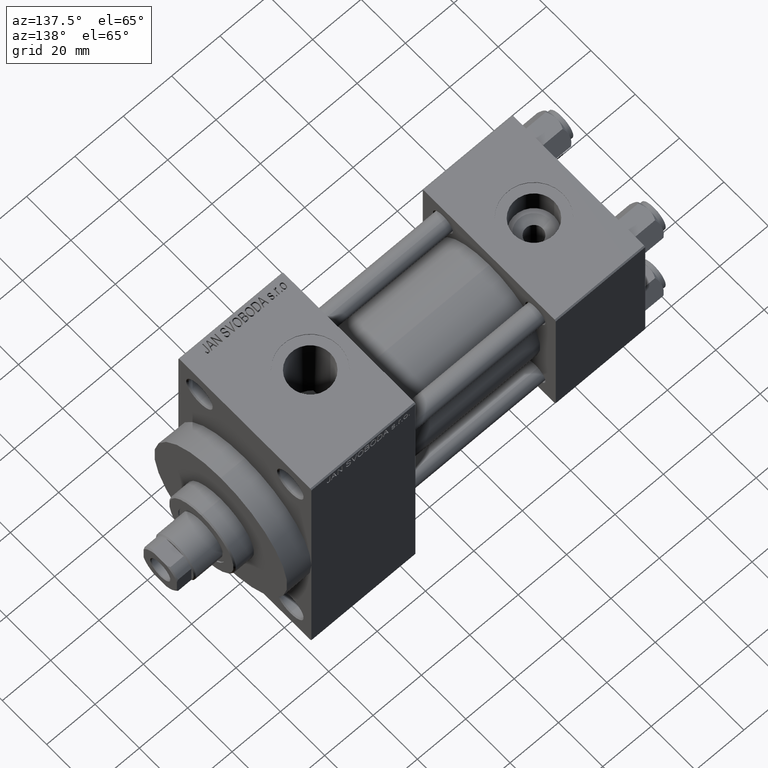
[diagram: clean part render]
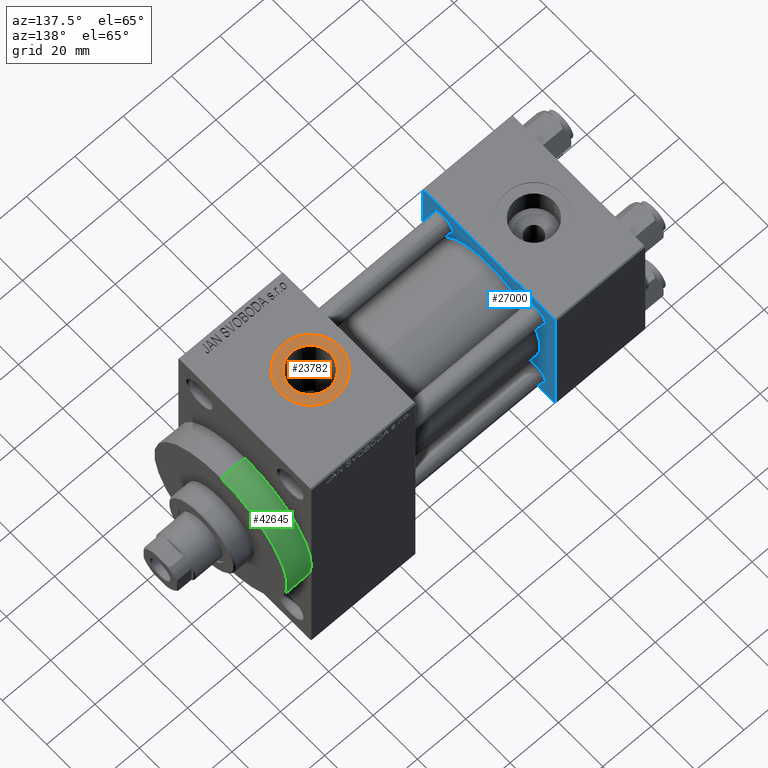
[diagram: same view with three faces highlighted in distinct colors, each labeled with its STEP entity id]
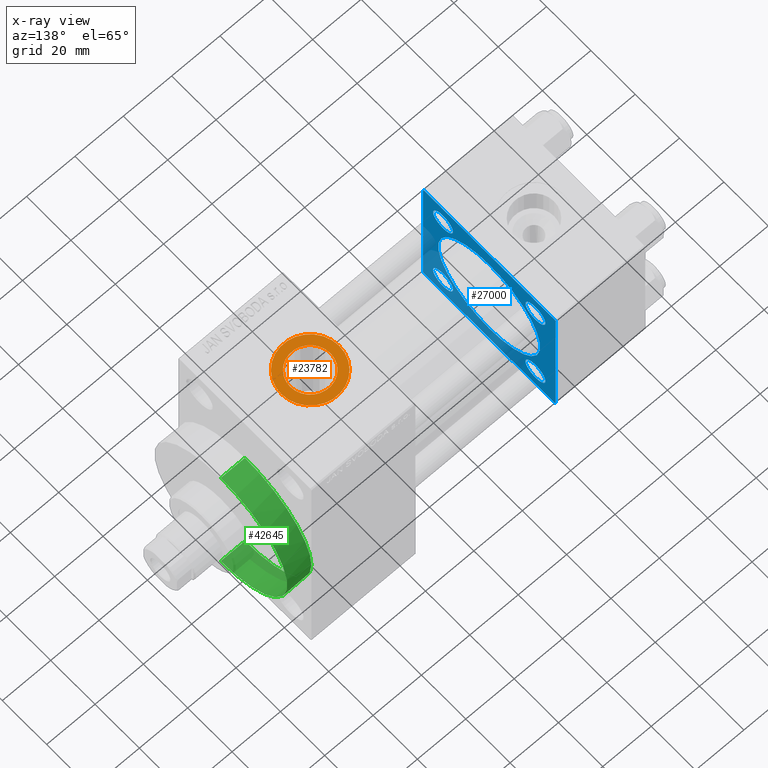
[diagram: x-ray of the same camera — body ghosted, the three highlighted faces saturated]
A machine part, auxiliary view with three faces highlighted in distinct colors.
The next image is the same camera in x-ray (body ghosted, the three faces saturated) — at least one of them is partly hidden behind the body in this view.
Their STEP definitions:

[orange] entity #23782 — the highlighted planar face has unit normal (0, 0, 1).
#280 = VERTEX_POINT ( 'NONE', #43083 ) ;
#3388 = CIRCLE ( 'NONE', #28540, 8.330000000000003624 ) ;
#4473 = PLANE ( 'NONE',  #13547 ) ;
#5805 = AXIS2_PLACEMENT_3D ( 'NONE', #40651, #6958, #43984 ) ;
#6668 = EDGE_CURVE ( 'NONE', #15767, #280, #32725, .T. ) ;
#6922 = DIRECTION ( 'NONE',  ( -0.000000000000000000, -0.000000000000000000, -1.000000000000000000 ) ) ;
#6958 = DIRECTION ( 'NONE',  ( -0.000000000000000000, -0.000000000000000000, -1.000000000000000000 ) ) ;
#7369 = DIRECTION ( 'NONE',  ( 0.000000000000000000, 0.000000000000000000, 1.000000000000000000 ) ) ;
#7382 = CARTESIAN_POINT ( 'NONE',  ( 111.0000000000000000, 6.302828629382399373E-15, 54.29999999999999716 ) ) ;
#10007 = CIRCLE ( 'NONE', #33650, 11.99999999999999645 ) ;
#10721 = ORIENTED_EDGE ( 'NONE', *, *, #43108, .T. ) ;
#10802 = ORIENTED_EDGE ( 'NONE', *, *, #6668, .T. ) ;
#11418 = DIRECTION ( 'NONE',  ( 1.000000000000000000, 0.000000000000000000, 0.000000000000000000 ) ) ;
#12669 = EDGE_LOOP ( 'NONE', ( #33732, #10802 ) ) ;
#13547 = AXIS2_PLACEMENT_3D ( 'NONE', #22616, #19514, #15474 ) ;
#13561 = VERTEX_POINT ( 'NONE', #37859 ) ;
#14585 = CARTESIAN_POINT ( 'NONE',  ( 99.00000000000000000, 7.772404788359221939E-15, 54.29999999999999716 ) ) ;
#15474 = DIRECTION ( 'NONE',  ( 1.000000000000000000, 0.000000000000000000, -0.000000000000000000 ) ) ;
#15767 = VERTEX_POINT ( 'NONE', #14585 ) ;
#15939 = FACE_BOUND ( 'NONE', #18379, .T. ) ;
#16300 = VERTEX_POINT ( 'NONE', #18986 ) ;
#18379 = EDGE_LOOP ( 'NONE', ( #10721, #30315 ) ) ;
#18986 = CARTESIAN_POINT ( 'NONE',  ( 119.3300000000000125, 7.322959413072145713E-15, 54.29999999999999716 ) ) ;
#19514 = DIRECTION ( 'NONE',  ( 0.000000000000000000, 0.000000000000000000, 1.000000000000000000 ) ) ;
#22422 = DIRECTION ( 'NONE',  ( 1.000000000000000000, 0.000000000000000000, 0.000000000000000000 ) ) ;
#22616 = CARTESIAN_POINT ( 'NONE',  ( 111.0000000000000000, 6.302828629382399373E-15, 54.29999999999999716 ) ) ;
#23782 = ADVANCED_FACE ( 'NONE', ( #15939, #37435 ), #4473, .T. ) ;
#28540 = AXIS2_PLACEMENT_3D ( 'NONE', #46356, #6922, #39190 ) ;
#30315 = ORIENTED_EDGE ( 'NONE', *, *, #46671, .T. ) ;
#31522 = EDGE_CURVE ( 'NONE', #280, #15767, #10007, .T. ) ;
#32698 = CARTESIAN_POINT ( 'NONE',  ( 111.0000000000000000, 6.302828629382399373E-15, 54.29999999999999716 ) ) ;
#32725 = CIRCLE ( 'NONE', #45714, 11.99999999999999645 ) ;
#33178 = DIRECTION ( 'NONE',  ( 0.000000000000000000, 0.000000000000000000, 1.000000000000000000 ) ) ;
#33650 = AXIS2_PLACEMENT_3D ( 'NONE', #32698, #7369, #11418 ) ;
#33732 = ORIENTED_EDGE ( 'NONE', *, *, #31522, .T. ) ;
#35570 = CIRCLE ( 'NONE', #5805, 8.330000000000003624 ) ;
#37435 = FACE_OUTER_BOUND ( 'NONE', #12669, .T. ) ;
#37859 = CARTESIAN_POINT ( 'NONE',  ( 102.6700000000000017, 6.302828629382400162E-15, 54.29999999999999716 ) ) ;
#39190 = DIRECTION ( 'NONE',  ( 1.000000000000000000, 0.000000000000000000, 0.000000000000000000 ) ) ;
#40651 = CARTESIAN_POINT ( 'NONE',  ( 111.0000000000000000, 6.302828629382400162E-15, 54.29999999999999716 ) ) ;
#43083 = CARTESIAN_POINT ( 'NONE',  ( 123.0000000000000000, 6.302828629382399373E-15, 54.29999999999999716 ) ) ;
#43108 = EDGE_CURVE ( 'NONE', #13561, #16300, #3388, .T. ) ;
#43984 = DIRECTION ( 'NONE',  ( 1.000000000000000000, 0.000000000000000000, 0.000000000000000000 ) ) ;
#45714 = AXIS2_PLACEMENT_3D ( 'NONE', #7382, #33178, #22422 ) ;
#46356 = CARTESIAN_POINT ( 'NONE',  ( 111.0000000000000000, 6.302828629382400162E-15, 54.29999999999999716 ) ) ;
#46671 = EDGE_CURVE ( 'NONE', #16300, #13561, #35570, .T. ) ;

[blue] entity #27000 — the highlighted planar face has unit normal (-1, 0, 0).
#322 = FACE_BOUND ( 'NONE', #7581, .T. ) ;
#462 = CARTESIAN_POINT ( 'NONE',  ( 37.00000000000000000, 29.99999999999999289, -30.00000000000000000 ) ) ;
#1276 = CARTESIAN_POINT ( 'NONE',  ( 37.00000000000000000, 29.49999999999997868, -30.00000000000000000 ) ) ;
#1509 = ORIENTED_EDGE ( 'NONE', *, *, #27133, .T. ) ;
#1863 = VERTEX_POINT ( 'NONE', #1276 ) ;
#2144 = DIRECTION ( 'NONE',  ( 0.000000000000000000, 0.000000000000000000, 1.000000000000000000 ) ) ;
#2237 = AXIS2_PLACEMENT_3D ( 'NONE', #11277, #36851, #39729 ) ;
#2449 = DIRECTION ( 'NONE',  ( -1.000000000000000000, 0.000000000000000000, -0.000000000000000000 ) ) ;
#2495 = EDGE_CURVE ( 'NONE', #1863, #44735, #18601, .T. ) ;
#3089 = AXIS2_PLACEMENT_3D ( 'NONE', #26754, #30820, #26991 ) ;
#3912 = CARTESIAN_POINT ( 'NONE',  ( 37.00000000000000000, 20.84999999999999787, 25.34999999999997655 ) ) ;
#4150 = EDGE_LOOP ( 'NONE', ( #7573, #26813 ) ) ;
#4767 = VECTOR ( 'NONE', #19657, 1000.000000000000114 ) ;
#4871 = ORIENTED_EDGE ( 'NONE', *, *, #9723, .T. ) ;
#5250 = AXIS2_PLACEMENT_3D ( 'NONE', #34289, #23074, #23531 ) ;
#5316 = EDGE_CURVE ( 'NONE', #14530, #36665, #35202, .T. ) ;
#5451 = AXIS2_PLACEMENT_3D ( 'NONE', #38989, #2449, #31352 ) ;
#5544 = DIRECTION ( 'NONE',  ( 0.000000000000000000, 0.000000000000000000, 1.000000000000000000 ) ) ;
#6476 = DIRECTION ( 'NONE',  ( -1.000000000000000000, 0.000000000000000000, -0.000000000000000000 ) ) ;
#6529 = CARTESIAN_POINT ( 'NONE',  ( 37.00000000000000000, 29.49999999999999289, 30.00000000000000000 ) ) ;
#6569 = EDGE_LOOP ( 'NONE', ( #18341, #9292 ) ) ;
#7053 = CARTESIAN_POINT ( 'NONE',  ( 37.00000000000000000, -30.00000000000000000, 29.99999999999999289 ) ) ;
#7521 = LINE ( 'NONE', #7053, #35707 ) ;
#7573 = ORIENTED_EDGE ( 'NONE', *, *, #45480, .T. ) ;
#7581 = EDGE_LOOP ( 'NONE', ( #36944, #38212 ) ) ;
#8081 = ORIENTED_EDGE ( 'NONE', *, *, #38204, .T. ) ;
#8140 = CARTESIAN_POINT ( 'NONE',  ( 37.00000000000000000, 20.84999999999999787, -25.34999999999997655 ) ) ;
#8207 = CARTESIAN_POINT ( 'NONE',  ( 37.00000000000000000, -29.50000000000001066, -30.00000000000000711 ) ) ;
#8476 = CARTESIAN_POINT ( 'NONE',  ( 37.00000000000000000, -29.50000000000000000, -30.00000000000000711 ) ) ;
#8569 = DIRECTION ( 'NONE',  ( 1.000000000000000000, -0.000000000000000000, 0.000000000000000000 ) ) ;
#9292 = ORIENTED_EDGE ( 'NONE', *, *, #11931, .T. ) ;
#9521 = CARTESIAN_POINT ( 'NONE',  ( 37.00000000000000000, 20.84999999999999787, -16.35000000000002274 ) ) ;
#9723 = EDGE_CURVE ( 'NONE', #35424, #47207, #23677, .T. ) ;
#9734 = CARTESIAN_POINT ( 'NONE',  ( 37.00000000000000000, -30.00000000000000000, 29.49999999999999289 ) ) ;
#9835 = AXIS2_PLACEMENT_3D ( 'NONE', #31804, #6476, #5544 ) ;
#10071 = LINE ( 'NONE', #43047, #19205 ) ;
#10229 = ORIENTED_EDGE ( 'NONE', *, *, #16850, .T. ) ;
#10530 = DIRECTION ( 'NONE',  ( -0.000000000000000000, -0.7071067811865474617, -0.7071067811865474617 ) ) ;
#11036 = CARTESIAN_POINT ( 'NONE',  ( 37.00000000000000000, -20.84999999999999076, 20.85000000000000497 ) ) ;
#11162 = VERTEX_POINT ( 'NONE', #18538 ) ;
#11277 = CARTESIAN_POINT ( 'NONE',  ( 37.00000000000000000, 0.000000000000000000, 0.000000000000000000 ) ) ;
#11434 = CARTESIAN_POINT ( 'NONE',  ( 37.00000000000000000, 20.84999999999999787, -20.85000000000000142 ) ) ;
#11516 = FACE_BOUND ( 'NONE', #4150, .T. ) ;
#11931 = EDGE_CURVE ( 'NONE', #44120, #45441, #38890, .T. ) ;
#11974 = DIRECTION ( 'NONE',  ( -1.000000000000000000, 0.000000000000000000, -0.000000000000000000 ) ) ;
#12677 = DIRECTION ( 'NONE',  ( 0.000000000000000000, 0.000000000000000000, 1.000000000000000000 ) ) ;
#13368 = AXIS2_PLACEMENT_3D ( 'NONE', #41347, #23180, #2144 ) ;
#14394 = FACE_BOUND ( 'NONE', #44146, .T. ) ;
#14530 = VERTEX_POINT ( 'NONE', #30677 ) ;
#14760 = EDGE_CURVE ( 'NONE', #18127, #21632, #27550, .T. ) ;
#14876 = PLANE ( 'NONE',  #2237 ) ;
#14895 = LINE ( 'NONE', #40940, #33282 ) ;
#14905 = ORIENTED_EDGE ( 'NONE', *, *, #2495, .F. ) ;
#15013 = LINE ( 'NONE', #44160, #38904 ) ;
#15535 = VERTEX_POINT ( 'NONE', #39485 ) ;
#16006 = AXIS2_PLACEMENT_3D ( 'NONE', #34581, #8569, #23354 ) ;
#16850 = EDGE_CURVE ( 'NONE', #15535, #19140, #10071, .T. ) ;
#18127 = VERTEX_POINT ( 'NONE', #38699 ) ;
#18185 = EDGE_CURVE ( 'NONE', #1863, #22318, #36283, .T. ) ;
#18262 = DIRECTION ( 'NONE',  ( 0.000000000000000000, 0.000000000000000000, -1.000000000000000000 ) ) ;
#18341 = ORIENTED_EDGE ( 'NONE', *, *, #28635, .T. ) ;
#18538 = CARTESIAN_POINT ( 'NONE',  ( 37.00000000000000000, -20.84999999999999076, -16.35000000000002629 ) ) ;
#18601 = LINE ( 'NONE', #462, #34126 ) ;
#18711 = LINE ( 'NONE', #8207, #4767 ) ;
#18969 = VECTOR ( 'NONE', #21559, 1000.000000000000114 ) ;
#19140 = VERTEX_POINT ( 'NONE', #9734 ) ;
#19205 = VECTOR ( 'NONE', #10530, 1000.000000000000114 ) ;
#19307 = DIRECTION ( 'NONE',  ( 0.000000000000000000, -1.000000000000000000, -1.156482317317871725E-16 ) ) ;
#19657 = DIRECTION ( 'NONE',  ( 0.000000000000000000, 0.7071067811865474617, -0.7071067811865474617 ) ) ;
#19942 = CARTESIAN_POINT ( 'NONE',  ( 37.00000000000000000, 20.84999999999999787, 16.35000000000002274 ) ) ;
#20469 = EDGE_CURVE ( 'NONE', #36665, #15535, #15013, .T. ) ;
#20558 = EDGE_CURVE ( 'NONE', #24448, #37509, #36579, .T. ) ;
#21344 = CIRCLE ( 'NONE', #29752, 4.499999999999976019 ) ;
#21528 = VERTEX_POINT ( 'NONE', #32295 ) ;
#21559 = DIRECTION ( 'NONE',  ( 0.000000000000000000, -0.7071067811865474617, 0.7071067811865474617 ) ) ;
#21632 = VERTEX_POINT ( 'NONE', #37994 ) ;
#21893 = EDGE_CURVE ( 'NONE', #37509, #24448, #33368, .T. ) ;
#21942 = DIRECTION ( 'NONE',  ( -0.000000000000000000, 0.7071067811865574537, 0.7071067811865376918 ) ) ;
#22318 = VERTEX_POINT ( 'NONE', #30663 ) ;
#22670 = VERTEX_POINT ( 'NONE', #43187 ) ;
#23074 = DIRECTION ( 'NONE',  ( 1.000000000000000000, -0.000000000000000000, 0.000000000000000000 ) ) ;
#23093 = ORIENTED_EDGE ( 'NONE', *, *, #18185, .T. ) ;
#23180 = DIRECTION ( 'NONE',  ( -1.000000000000000000, 0.000000000000000000, -0.000000000000000000 ) ) ;
#23354 = DIRECTION ( 'NONE',  ( 0.000000000000000000, 0.000000000000000000, 1.000000000000000000 ) ) ;
#23531 = DIRECTION ( 'NONE',  ( 0.000000000000000000, 0.000000000000000000, 1.000000000000000000 ) ) ;
#23677 = CIRCLE ( 'NONE', #3089, 4.499999999999976019 ) ;
#24062 = EDGE_CURVE ( 'NONE', #19140, #22670, #7521, .T. ) ;
#24448 = VERTEX_POINT ( 'NONE', #47135 ) ;
#24850 = DIRECTION ( 'NONE',  ( -1.000000000000000000, 0.000000000000000000, -0.000000000000000000 ) ) ;
#24955 = ORIENTED_EDGE ( 'NONE', *, *, #21893, .F. ) ;
#25064 = CARTESIAN_POINT ( 'NONE',  ( 37.00000000000000000, 29.99999999999999289, -29.50000000000000000 ) ) ;
#25330 = DIRECTION ( 'NONE',  ( 0.000000000000000000, 0.000000000000000000, 1.000000000000000000 ) ) ;
#25858 = FACE_BOUND ( 'NONE', #6569, .T. ) ;
#25881 = DIRECTION ( 'NONE',  ( 0.000000000000000000, 0.000000000000000000, -1.000000000000000000 ) ) ;
#26044 = CIRCLE ( 'NONE', #5451, 4.499999999999976019 ) ;
#26654 = CIRCLE ( 'NONE', #9835, 4.499999999999976019 ) ;
#26754 = CARTESIAN_POINT ( 'NONE',  ( 37.00000000000000000, 20.84999999999999787, 20.85000000000000142 ) ) ;
#26813 = ORIENTED_EDGE ( 'NONE', *, *, #43019, .T. ) ;
#26886 = VECTOR ( 'NONE', #21942, 999.9999999999998863 ) ;
#26960 = DIRECTION ( 'NONE',  ( -1.000000000000000000, 0.000000000000000000, -0.000000000000000000 ) ) ;
#26991 = DIRECTION ( 'NONE',  ( 0.000000000000000000, 0.000000000000000000, 1.000000000000000000 ) ) ;
#27000 = ADVANCED_FACE ( 'NONE', ( #11516, #25858, #322, #14394, #39488, #44019 ), #14876, .F. ) ;
#27133 = EDGE_CURVE ( 'NONE', #47207, #35424, #26654, .T. ) ;
#27242 = DIRECTION ( 'NONE',  ( -1.000000000000000000, 0.000000000000000000, -0.000000000000000000 ) ) ;
#27550 = CIRCLE ( 'NONE', #35164, 4.499999999999976019 ) ;
#27858 = CIRCLE ( 'NONE', #13368, 4.499999999999976019 ) ;
#28535 = ORIENTED_EDGE ( 'NONE', *, *, #24062, .T. ) ;
#28635 = EDGE_CURVE ( 'NONE', #45441, #44120, #21344, .T. ) ;
#29752 = AXIS2_PLACEMENT_3D ( 'NONE', #11434, #26960, #33415 ) ;
#29803 = EDGE_LOOP ( 'NONE', ( #24955, #43197 ) ) ;
#30663 = CARTESIAN_POINT ( 'NONE',  ( 37.00000000000000000, 29.99999999999999289, -29.50000000000000000 ) ) ;
#30677 = CARTESIAN_POINT ( 'NONE',  ( 37.00000000000000000, 29.99999999999999289, 29.50000000000000000 ) ) ;
#30820 = DIRECTION ( 'NONE',  ( -1.000000000000000000, 0.000000000000000000, -0.000000000000000000 ) ) ;
#31055 = CARTESIAN_POINT ( 'NONE',  ( 37.00000000000000000, 29.49999999999999289, 30.00000000000000000 ) ) ;
#31342 = ORIENTED_EDGE ( 'NONE', *, *, #47168, .F. ) ;
#31352 = DIRECTION ( 'NONE',  ( 0.000000000000000000, 0.000000000000000000, 1.000000000000000000 ) ) ;
#31804 = CARTESIAN_POINT ( 'NONE',  ( 37.00000000000000000, 20.84999999999999787, 20.85000000000000142 ) ) ;
#32295 = CARTESIAN_POINT ( 'NONE',  ( 37.00000000000000000, -20.84999999999999076, -25.34999999999998010 ) ) ;
#32460 = EDGE_CURVE ( 'NONE', #21632, #18127, #26044, .T. ) ;
#33169 = DIRECTION ( 'NONE',  ( 0.000000000000000000, -1.000000000000000000, -1.156482317317871725E-16 ) ) ;
#33282 = VECTOR ( 'NONE', #25881, 1000.000000000000000 ) ;
#33368 = CIRCLE ( 'NONE', #5250, 23.00000000000000000 ) ;
#33415 = DIRECTION ( 'NONE',  ( 0.000000000000000000, 0.000000000000000000, 1.000000000000000000 ) ) ;
#34126 = VECTOR ( 'NONE', #19307, 1000.000000000000000 ) ;
#34289 = CARTESIAN_POINT ( 'NONE',  ( 37.00000000000000000, -2.602085213965210642E-15, 0.000000000000000000 ) ) ;
#34581 = CARTESIAN_POINT ( 'NONE',  ( 37.00000000000000000, -2.602085213965210642E-15, 0.000000000000000000 ) ) ;
#35164 = AXIS2_PLACEMENT_3D ( 'NONE', #11036, #11974, #40673 ) ;
#35202 = LINE ( 'NONE', #6529, #18969 ) ;
#35424 = VERTEX_POINT ( 'NONE', #19942 ) ;
#35595 = CARTESIAN_POINT ( 'NONE',  ( 37.00000000000000000, 20.84999999999999787, -20.85000000000000142 ) ) ;
#35707 = VECTOR ( 'NONE', #18262, 1000.000000000000000 ) ;
#36283 = LINE ( 'NONE', #25064, #26886 ) ;
#36579 = CIRCLE ( 'NONE', #16006, 23.00000000000000000 ) ;
#36665 = VERTEX_POINT ( 'NONE', #31055 ) ;
#36704 = AXIS2_PLACEMENT_3D ( 'NONE', #35595, #24850, #25330 ) ;
#36851 = DIRECTION ( 'NONE',  ( -1.000000000000000000, 0.000000000000000000, -0.000000000000000000 ) ) ;
#36944 = ORIENTED_EDGE ( 'NONE', *, *, #14760, .T. ) ;
#37509 = VERTEX_POINT ( 'NONE', #44925 ) ;
#37994 = CARTESIAN_POINT ( 'NONE',  ( 37.00000000000000000, -20.84999999999999076, 25.34999999999998010 ) ) ;
#38204 = EDGE_CURVE ( 'NONE', #22670, #44735, #18711, .T. ) ;
#38212 = ORIENTED_EDGE ( 'NONE', *, *, #32460, .T. ) ;
#38360 = ORIENTED_EDGE ( 'NONE', *, *, #20469, .T. ) ;
#38699 = CARTESIAN_POINT ( 'NONE',  ( 37.00000000000000000, -20.84999999999999076, 16.35000000000002629 ) ) ;
#38890 = CIRCLE ( 'NONE', #36704, 4.499999999999976019 ) ;
#38904 = VECTOR ( 'NONE', #33169, 1000.000000000000000 ) ;
#38989 = CARTESIAN_POINT ( 'NONE',  ( 37.00000000000000000, -20.84999999999999076, 20.85000000000000497 ) ) ;
#39485 = CARTESIAN_POINT ( 'NONE',  ( 37.00000000000000000, -29.49999999999998579, 29.99999999999999289 ) ) ;
#39488 = FACE_BOUND ( 'NONE', #29803, .T. ) ;
#39729 = DIRECTION ( 'NONE',  ( -0.000000000000000000, 0.000000000000000000, 1.000000000000000000 ) ) ;
#40673 = DIRECTION ( 'NONE',  ( 0.000000000000000000, 0.000000000000000000, 1.000000000000000000 ) ) ;
#40776 = AXIS2_PLACEMENT_3D ( 'NONE', #42305, #27242, #12677 ) ;
#40940 = CARTESIAN_POINT ( 'NONE',  ( 37.00000000000000000, 29.99999999999999289, 30.00000000000000000 ) ) ;
#41347 = CARTESIAN_POINT ( 'NONE',  ( 37.00000000000000000, -20.84999999999999076, -20.85000000000000497 ) ) ;
#42305 = CARTESIAN_POINT ( 'NONE',  ( 37.00000000000000000, -20.84999999999999076, -20.85000000000000497 ) ) ;
#42982 = EDGE_LOOP ( 'NONE', ( #14905, #23093, #31342, #43411, #38360, #10229, #28535, #8081 ) ) ;
#43019 = EDGE_CURVE ( 'NONE', #11162, #21528, #44587, .T. ) ;
#43047 = CARTESIAN_POINT ( 'NONE',  ( 37.00000000000000000, -30.00000000000000000, 29.49999999999999289 ) ) ;
#43187 = CARTESIAN_POINT ( 'NONE',  ( 37.00000000000000000, -30.00000000000000000, -29.50000000000001776 ) ) ;
#43197 = ORIENTED_EDGE ( 'NONE', *, *, #20558, .F. ) ;
#43411 = ORIENTED_EDGE ( 'NONE', *, *, #5316, .T. ) ;
#44019 = FACE_OUTER_BOUND ( 'NONE', #42982, .T. ) ;
#44120 = VERTEX_POINT ( 'NONE', #9521 ) ;
#44146 = EDGE_LOOP ( 'NONE', ( #4871, #1509 ) ) ;
#44160 = CARTESIAN_POINT ( 'NONE',  ( 37.00000000000000000, 29.99999999999999289, 30.00000000000000000 ) ) ;
#44587 = CIRCLE ( 'NONE', #40776, 4.499999999999976019 ) ;
#44735 = VERTEX_POINT ( 'NONE', #8476 ) ;
#44925 = CARTESIAN_POINT ( 'NONE',  ( 37.00000000000000000, -2.602085213965210642E-15, 23.00000000000000000 ) ) ;
#45441 = VERTEX_POINT ( 'NONE', #8140 ) ;
#45480 = EDGE_CURVE ( 'NONE', #21528, #11162, #27858, .T. ) ;
#47135 = CARTESIAN_POINT ( 'NONE',  ( 37.00000000000000000, 2.146024240737012665E-16, -23.00000000000000000 ) ) ;
#47168 = EDGE_CURVE ( 'NONE', #14530, #22318, #14895, .T. ) ;
#47207 = VERTEX_POINT ( 'NONE', #3912 ) ;

[green] entity #42645 — the highlighted cylindrical surface (partial cylindrical patch) has radius 30 mm, axis along (-1, -0, -0).
#1093 = ORIENTED_EDGE ( 'NONE', *, *, #31402, .T. ) ;
#1295 = DIRECTION ( 'NONE',  ( -1.000000000000000000, -0.000000000000000000, -0.000000000000000000 ) ) ;
#3470 = ORIENTED_EDGE ( 'NONE', *, *, #18588, .F. ) ;
#5410 = AXIS2_PLACEMENT_3D ( 'NONE', #8196, #22515, #15119 ) ;
#6764 = AXIS2_PLACEMENT_3D ( 'NONE', #27664, #24558, #17158 ) ;
#7456 = VERTEX_POINT ( 'NONE', #45355 ) ;
#7486 = AXIS2_PLACEMENT_3D ( 'NONE', #13190, #10075, #27753 ) ;
#8196 = CARTESIAN_POINT ( 'NONE',  ( 138.0000000000000000, 0.000000000000000000, 0.000000000000000000 ) ) ;
#10075 = DIRECTION ( 'NONE',  ( 1.000000000000000000, 0.000000000000000000, 0.000000000000000000 ) ) ;
#10241 = AXIS2_PLACEMENT_3D ( 'NONE', #29706, #1295, #33529 ) ;
#12794 = EDGE_LOOP ( 'NONE', ( #21244, #31914, #42676, #1093, #3470 ) ) ;
#13190 = CARTESIAN_POINT ( 'NONE',  ( 138.0000000000000000, 0.000000000000000000, 0.000000000000000000 ) ) ;
#15119 = DIRECTION ( 'NONE',  ( 0.000000000000000000, 0.000000000000000000, -1.000000000000000000 ) ) ;
#15629 = CYLINDRICAL_SURFACE ( 'NONE', #10241, 30.00000000000000000 ) ;
#16675 = CIRCLE ( 'NONE', #7486, 30.00000000000000000 ) ;
#17158 = DIRECTION ( 'NONE',  ( 0.000000000000000000, 0.000000000000000000, -1.000000000000000000 ) ) ;
#18491 = VECTOR ( 'NONE', #43651, 1000.000000000000000 ) ;
#18588 = EDGE_CURVE ( 'NONE', #7456, #24252, #44110, .T. ) ;
#19434 = FACE_OUTER_BOUND ( 'NONE', #12794, .T. ) ;
#19567 = CARTESIAN_POINT ( 'NONE',  ( 148.0000000000000284, 3.673940397442059178E-15, -30.00000000000000000 ) ) ;
#21244 = ORIENTED_EDGE ( 'NONE', *, *, #25438, .F. ) ;
#21316 = EDGE_CURVE ( 'NONE', #34666, #33904, #16675, .T. ) ;
#22515 = DIRECTION ( 'NONE',  ( 1.000000000000000000, 0.000000000000000000, 0.000000000000000000 ) ) ;
#22726 = VECTOR ( 'NONE', #38195, 1000.000000000000000 ) ;
#23442 = EDGE_CURVE ( 'NONE', #35008, #34666, #41324, .T. ) ;
#24252 = VERTEX_POINT ( 'NONE', #24444 ) ;
#24444 = CARTESIAN_POINT ( 'NONE',  ( 138.0000000000000000, 0.000000000000000000, 30.00000000000000000 ) ) ;
#24558 = DIRECTION ( 'NONE',  ( 1.000000000000000000, 0.000000000000000000, 0.000000000000000000 ) ) ;
#25438 = EDGE_CURVE ( 'NONE', #35008, #7456, #46434, .T. ) ;
#27446 = CARTESIAN_POINT ( 'NONE',  ( 138.0000000000000000, 30.00000000000000000, 0.000000000000000000 ) ) ;
#27528 = CIRCLE ( 'NONE', #5410, 30.00000000000000000 ) ;
#27664 = CARTESIAN_POINT ( 'NONE',  ( 148.0000000000000284, 0.000000000000000000, 0.000000000000000000 ) ) ;
#27753 = DIRECTION ( 'NONE',  ( 0.000000000000000000, 0.000000000000000000, -1.000000000000000000 ) ) ;
#29706 = CARTESIAN_POINT ( 'NONE',  ( 148.0000000000000284, 0.000000000000000000, 0.000000000000000000 ) ) ;
#31402 = EDGE_CURVE ( 'NONE', #33904, #24252, #27528, .T. ) ;
#31914 = ORIENTED_EDGE ( 'NONE', *, *, #23442, .T. ) ;
#33529 = DIRECTION ( 'NONE',  ( 0.000000000000000000, 0.000000000000000000, 1.000000000000000000 ) ) ;
#33828 = CARTESIAN_POINT ( 'NONE',  ( 148.0000000000000284, 0.000000000000000000, 30.00000000000000000 ) ) ;
#33904 = VERTEX_POINT ( 'NONE', #27446 ) ;
#34666 = VERTEX_POINT ( 'NONE', #45866 ) ;
#35008 = VERTEX_POINT ( 'NONE', #37932 ) ;
#37932 = CARTESIAN_POINT ( 'NONE',  ( 148.0000000000000284, 3.673940397442059178E-15, -30.00000000000000000 ) ) ;
#38195 = DIRECTION ( 'NONE',  ( -1.000000000000000000, -0.000000000000000000, -0.000000000000000000 ) ) ;
#41324 = LINE ( 'NONE', #19567, #22726 ) ;
#42645 = ADVANCED_FACE ( 'NONE', ( #19434 ), #15629, .T. ) ;
#42676 = ORIENTED_EDGE ( 'NONE', *, *, #21316, .T. ) ;
#43651 = DIRECTION ( 'NONE',  ( -1.000000000000000000, -0.000000000000000000, -0.000000000000000000 ) ) ;
#44110 = LINE ( 'NONE', #33828, #18491 ) ;
#45355 = CARTESIAN_POINT ( 'NONE',  ( 148.0000000000000284, 0.000000000000000000, 30.00000000000000000 ) ) ;
#45866 = CARTESIAN_POINT ( 'NONE',  ( 138.0000000000000000, 3.673940397442059178E-15, -30.00000000000000000 ) ) ;
#46434 = CIRCLE ( 'NONE', #6764, 30.00000000000000000 ) ;